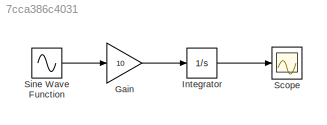
MODEL slx_7cca386c4031
KIND model
CONFIG AbsTol = auto
CONFIG EnableMultiTasking = off
CONFIG FixedStep = auto
CONFIG MaxStep = auto
CONFIG MinStep = auto
CONFIG RelTol = 1e-3
CONFIG SampleTimeConstraint = Unconstrained
CONFIG SolverName = VariableStepAuto
CONFIG StartTime = 0.0
CONFIG StopTime = 13.0
BLOCK [Gain] Gain
  Gain = 10
BLOCK [Integrator] Integrator
BLOCK [Scope] Scope
  Floating = off
  NumInputPorts = 1
  ScopeSpecificationString = Simulink.scopes.TimeScopeBlockCfg('CurrentConfiguration', extmgr.ConfigurationSet(extmgr.Configuration('Core','General UI',true),extmgr.Configuration('Core','Source UI',true),extmgr.Configuration('Sources','WiredSimulink',true),extmgr.Configuration('Visuals','Time Domain',true,'SerializedDisplays',{struct('MinYLimReal','-2.49971','MaxYLimReal','22.49738','YLabelReal','','MinYLimMag','0.00000','Max...<+1370ch>
BLOCK [Sin] Sine Wave Function
  SampleTime = 0
LINE Gain:1 -> Integrator:1
LINE Integrator:1 -> Scope:1
LINE Sine Wave Function:1 -> Gain:1
